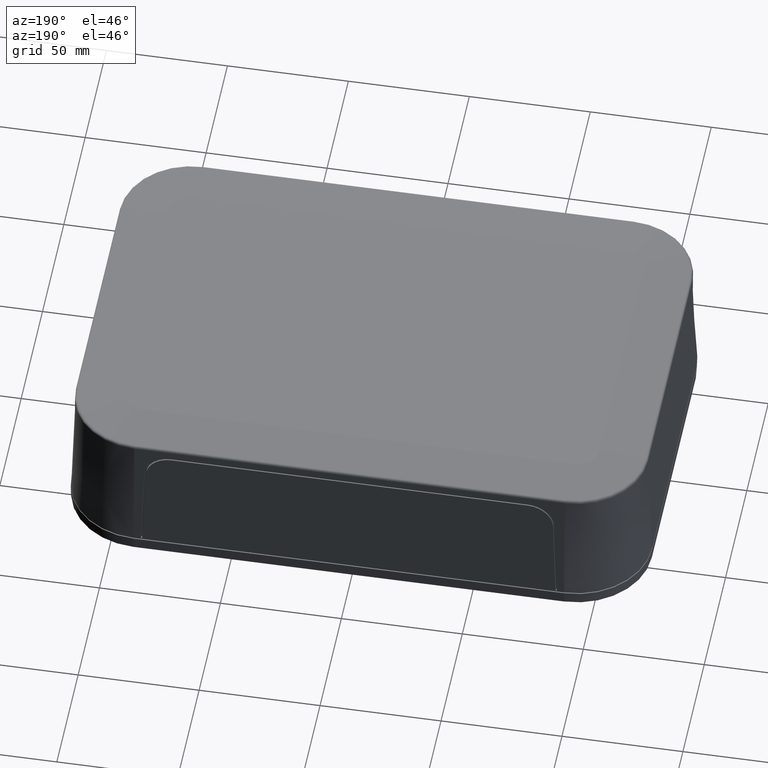
[diagram: clean part render]
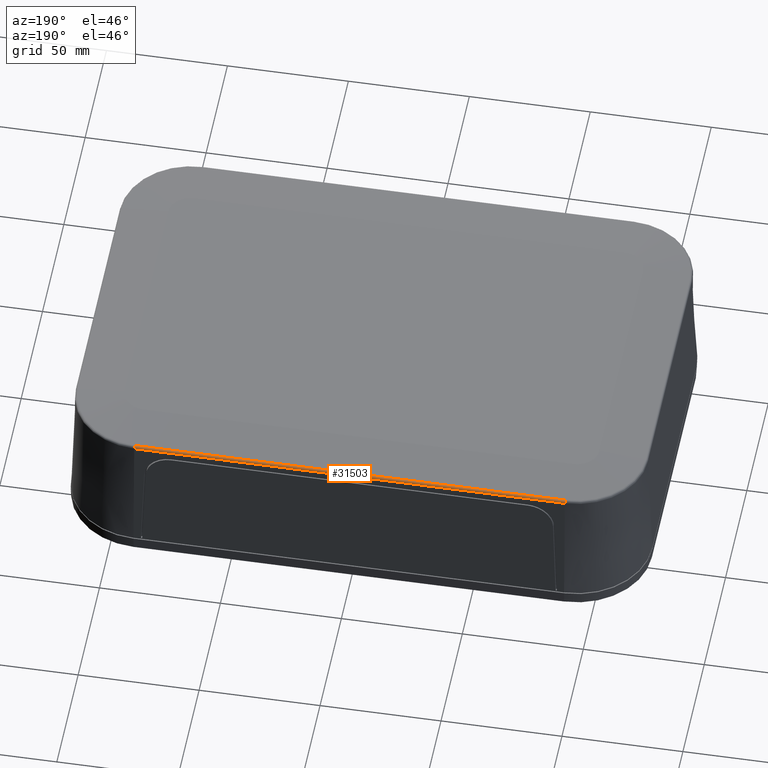
[diagram: same view with one face highlighted and labeled with its STEP entity id]
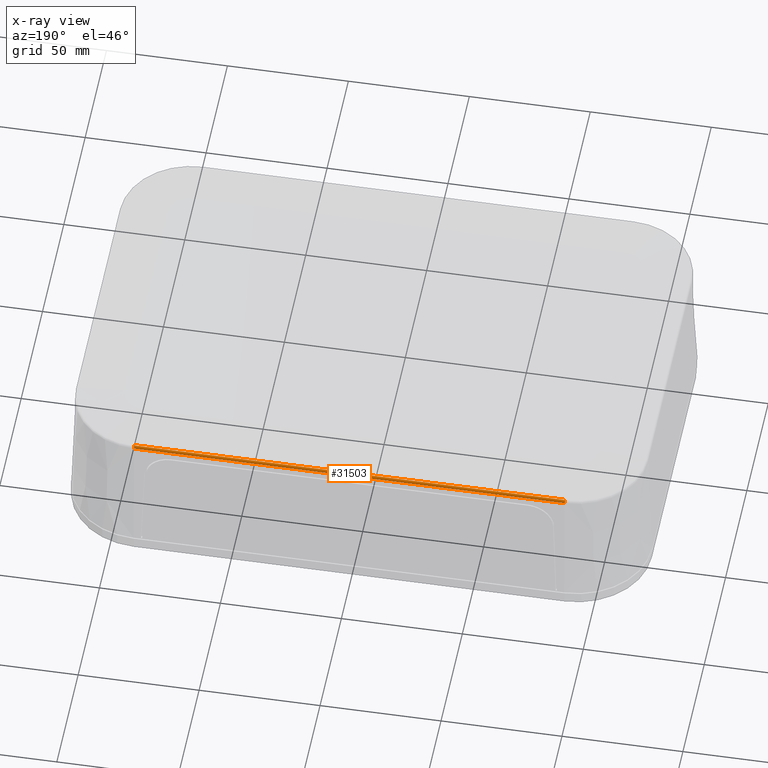
[diagram: x-ray of the same camera — body ghosted, the highlighted face saturated]
A machine part, auxiliary view. The second image highlights one B-rep face of the part: STEP entity #31503.
The next image is the same camera in x-ray: the body ghosted, the highlighted face saturated — about 0% of this face is hidden behind the body in this view.
In plain terms, the highlighted cylindrical surface (edge-blend (fillet) strip) has radius 1 mm, axis along (-1, -0, -0).
Its self-contained STEP definition (entity closure, byte-faithful):
#29990=CARTESIAN_POINT('',(-89.000000000000028,80.739491139584615,50.414377633672146));
#29991=VERTEX_POINT('',#29990);
#30034=CARTESIAN_POINT('',(-89.000000000000028,79.824495117549162,51.375910531511153));
#30035=VERTEX_POINT('',#30034);
#30075=CARTESIAN_POINT('',(-89.000000000000028,79.740100312565517,50.379478136969652));
#30076=DIRECTION('',(1.0,0.0,0.0));
#30077=DIRECTION('',(0.0,0.999390827019096,0.0348994967025));
#30078=AXIS2_PLACEMENT_3D('',#30075,#30076,#30077);
#30079=CIRCLE('',#30078,1.000000000000006);
#30080=EDGE_CURVE('',#29991,#30035,#30079,.T.);
#30098=CARTESIAN_POINT('',(89.000000000000028,80.739491139584629,50.414377633672146));
#30099=VERTEX_POINT('',#30098);
#30123=CARTESIAN_POINT('',(89.000000000000028,79.824495117549191,51.375910531511167));
#30124=VERTEX_POINT('',#30123);
#30134=CARTESIAN_POINT('',(89.000000000000028,79.740100312565531,50.379478136969652));
#30135=DIRECTION('',(-1.0,0.0,0.0));
#30136=DIRECTION('',(0.0,0.084394804983657,0.996432394541532));
#30137=AXIS2_PLACEMENT_3D('',#30134,#30135,#30136);
#30138=CIRCLE('',#30137,0.999999999999988);
#30139=EDGE_CURVE('',#30124,#30099,#30138,.T.);
#31482=CARTESIAN_POINT('',(-66.75,79.740100312565517,50.379478136969652));
#31483=DIRECTION('',(-1.0,-9.979533E-017,-1.551793E-033));
#31484=DIRECTION('',(0.0,0.724419907540224,0.68935897583147));
#31485=AXIS2_PLACEMENT_3D('',#31482,#31483,#31484);
#31486=CYLINDRICAL_SURFACE('',#31485,1.0);
#31487=ORIENTED_EDGE('',*,*,#30139,.T.);
#31488=CARTESIAN_POINT('',(89.000000000000028,80.739491139584629,50.414377633672146));
#31489=DIRECTION('',(-1.0,0.0,0.0));
#31490=VECTOR('',#31489,178.00000000000006);
#31491=LINE('',#31488,#31490);
#31492=EDGE_CURVE('',#30099,#29991,#31491,.T.);
#31493=ORIENTED_EDGE('',*,*,#31492,.T.);
#31494=ORIENTED_EDGE('',*,*,#30080,.T.);
#31495=CARTESIAN_POINT('',(-89.000000000000014,79.824495117549162,51.375910531511167));
#31496=DIRECTION('',(1.0,0.0,0.0));
#31497=VECTOR('',#31496,178.00000000000006);
#31498=LINE('',#31495,#31497);
#31499=EDGE_CURVE('',#30035,#30124,#31498,.T.);
#31500=ORIENTED_EDGE('',*,*,#31499,.T.);
#31501=EDGE_LOOP('',(#31487,#31493,#31494,#31500));
#31502=FACE_OUTER_BOUND('',#31501,.T.);
#31503=ADVANCED_FACE('',(#31502),#31486,.T.);